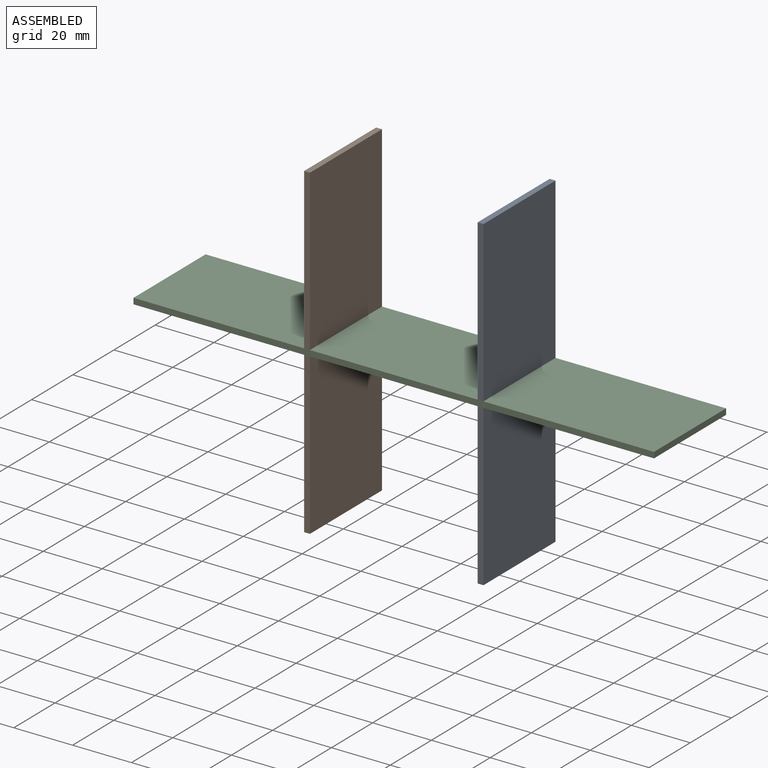
[diagram: assembled view]
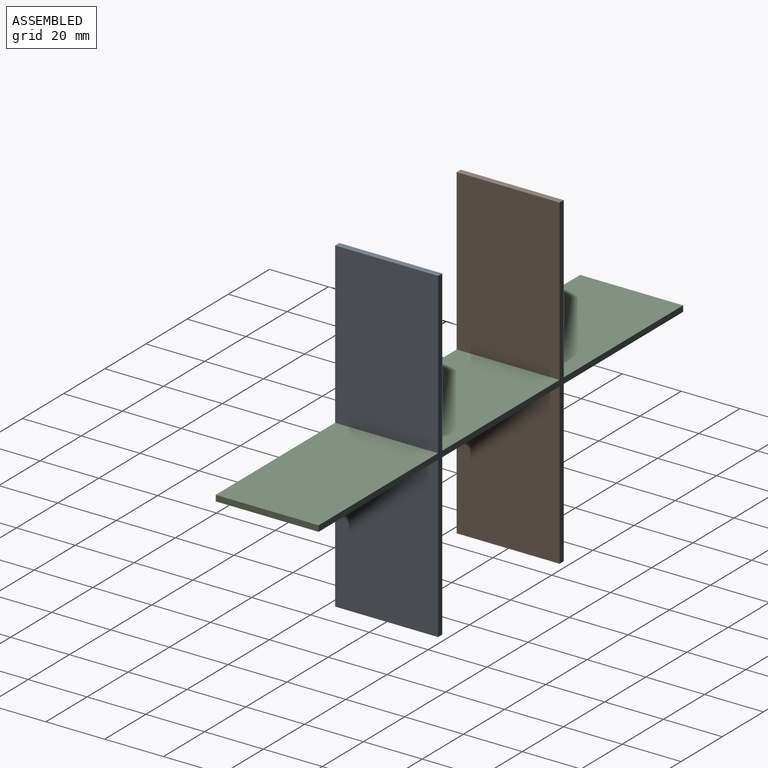
[diagram: assembled view, second angle]
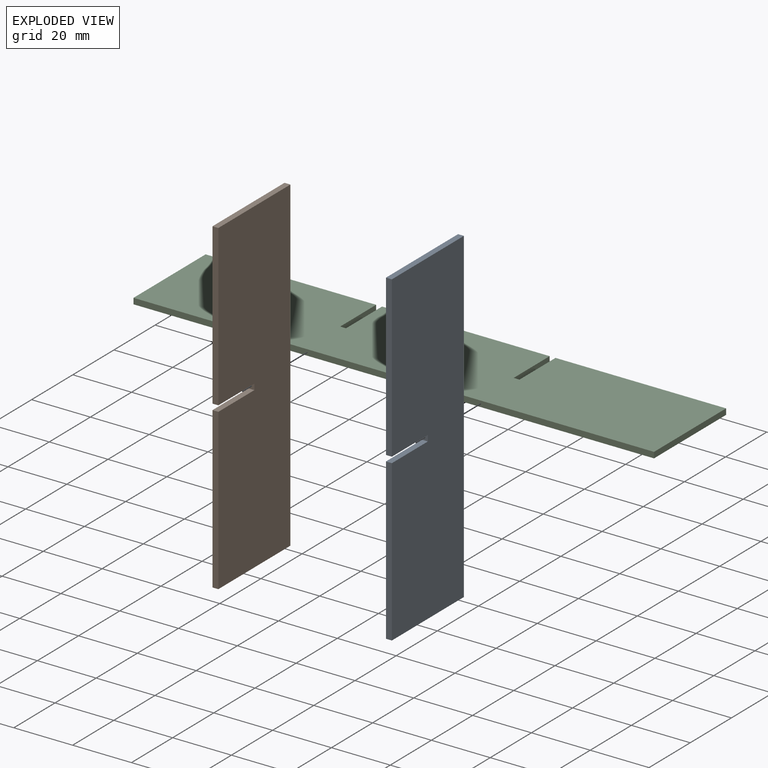
[diagram: exploded view]
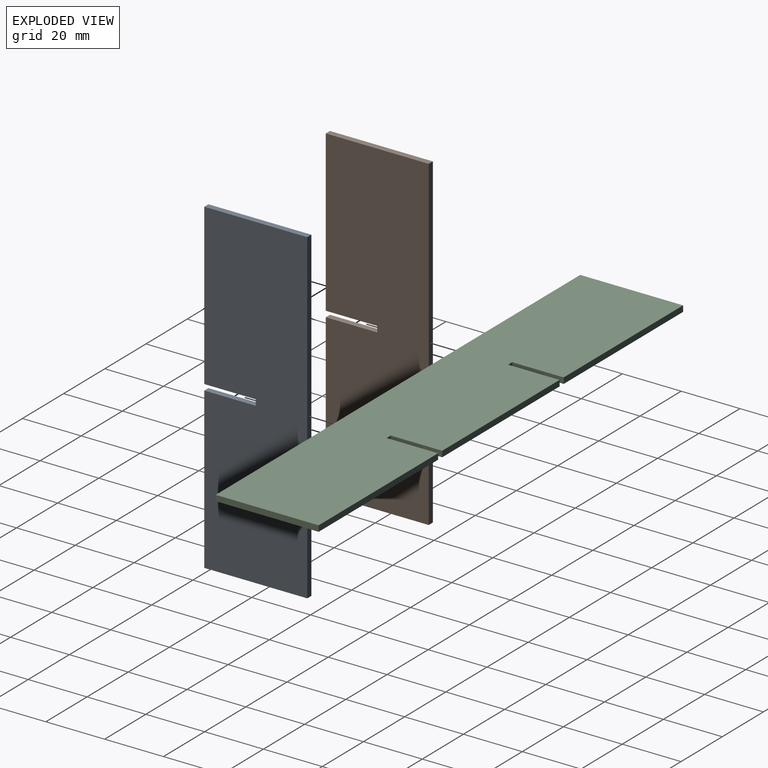
[diagram: exploded view, second angle]
ASSEMBLY  parts=3 mates=2
PART A: 10 faces, bbox 111x35x2 mm
  f0: plane 2x2mm, normal (0,-1,0), area 4mm2, adj f1,f7,f8,f9
  f1: plane 17.5x2mm, normal (-1,0,0), area 35mm2, adj f0,f2,f8,f9
  f2: plane 54.5x2mm, normal (0,-1,0), area 109mm2, adj f1,f3,f8,f9
  f3: plane 35x2mm, normal (1,0,0), area 70mm2, adj f2,f4,f8,f9
  f4: plane 111x2mm, normal (0,1,0), area 222mm2, adj f3,f5,f8,f9
  f5: plane 35x2mm, normal (-1,0,0), area 70mm2, adj f4,f6,f8,f9
  f6: plane 54.5x2mm, normal (0,-1,0), area 109mm2, adj f5,f7,f8,f9
  f7: plane 17.5x2mm, normal (1,0,0), area 35mm2, adj f0,f6,f8,f9
  f8: plane 111x35mm, normal (0,0,1), area 3850mm2, adj f0,f1,f2,f3,f4,f5,f6,f7
  f9: plane 111x35mm, normal (0,0,-1), area 3850mm2, adj f0,f1,f2,f3,f4,f5,f6,f7
PART B: same geometry as A
PART C: 14 faces, bbox 177x35x2 mm
  f0: plane 2x2mm, normal (0,1,0), area 4mm2, adj f1,f11,f12,f13
  f1: plane 17.5x2mm, normal (1,0,0), area 35mm2, adj f0,f2,f12,f13
  f2: plane 57x2mm, normal (0,1,0), area 114mm2, adj f1,f3,f12,f13
  f3: plane 17.5x2mm, normal (-1,0,0), area 35mm2, adj f2,f4,f12,f13
  f4: plane 2x2mm, normal (0,1,0), area 4mm2, adj f3,f5,f12,f13
  f5: plane 17.5x2mm, normal (1,0,0), area 35mm2, adj f4,f6,f12,f13
  f6: plane 58x2mm, normal (0,1,0), area 116mm2, adj f5,f7,f12,f13
  f7: plane 35x2mm, normal (-1,0,0), area 70mm2, adj f6,f8,f12,f13
  f8: plane 177x2mm, normal (0,-1,0), area 354mm2, adj f7,f9,f12,f13
  f9: plane 35x2mm, normal (1,0,0), area 70mm2, adj f8,f10,f12,f13
  f10: plane 58x2mm, normal (0,1,0), area 116mm2, adj f9,f11,f12,f13
  f11: plane 17.5x2mm, normal (-1,0,0), area 35mm2, adj f0,f10,f12,f13
  f12: plane 177x35mm, normal (0,0,1), area 6125mm2, adj f0,f1,f2,f3,f4,f5,f6,f7
  f13: plane 177x35mm, normal (0,0,-1), area 6125mm2, adj f0,f1,f2,f3,f4,f5,f6,f7
PLACE A rot(axis=(0,-1,0),90deg) t=(57.19,21.42,87.06)mm
PLACE B rot(axis=(0,-1,0),90deg) t=(-1.81,21.42,87.06)mm
PLACE C rot(axis=(0,0,1),0deg) t=(-61.81,-13.58,30.56)mm fixed
MATE fastened C.f0 <-> A.f0  axis (0,1,0) through (56.19,3.92,32.56)mm
MATE fastened C.f4 <-> B.f0  axis (0,1,0) through (-2.81,3.92,30.56)mm
